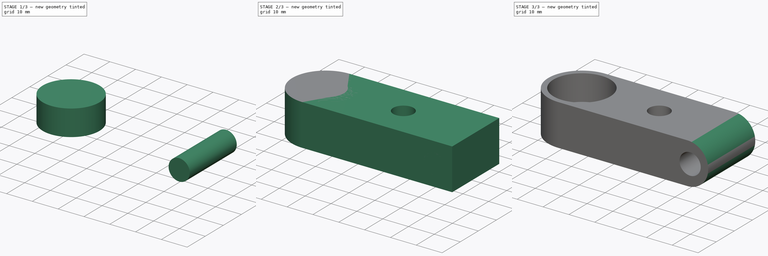
[diagram: build sequence overview — one tinted view per stage of 3, left to right]
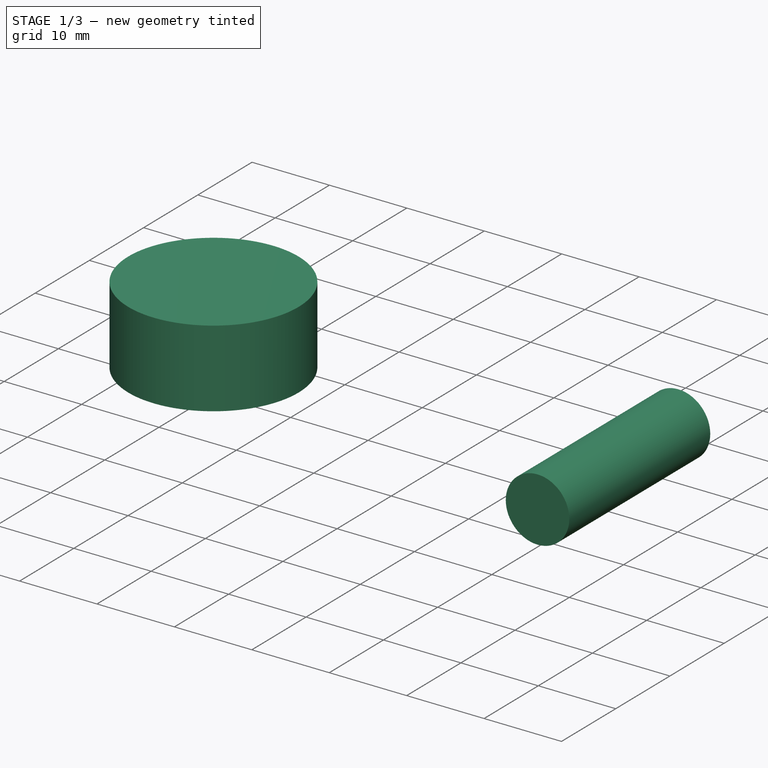
[diagram: stage 1 of 3 — iso view after this stage's code; geometry added in this stage tinted green]
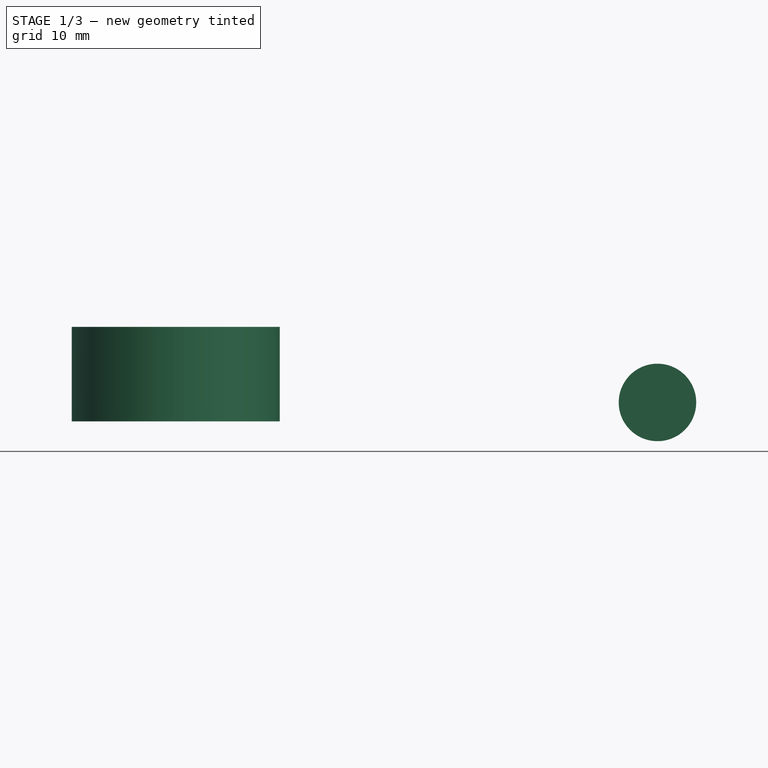
[diagram: stage 1 of 3 — front view after this stage's code; geometry added in this stage tinted green]
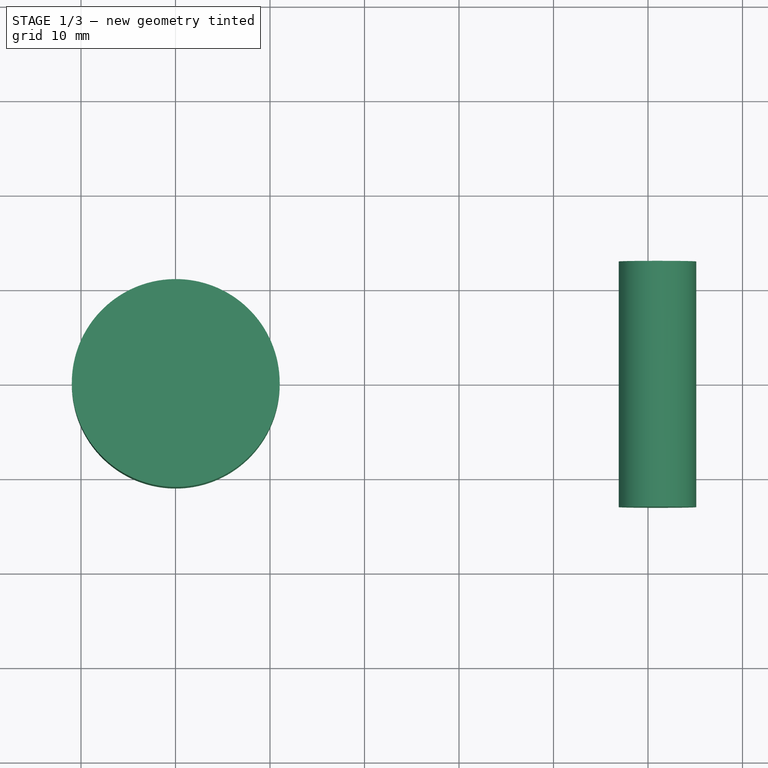
[diagram: stage 1 of 3 — top view after this stage's code; geometry added in this stage tinted green]
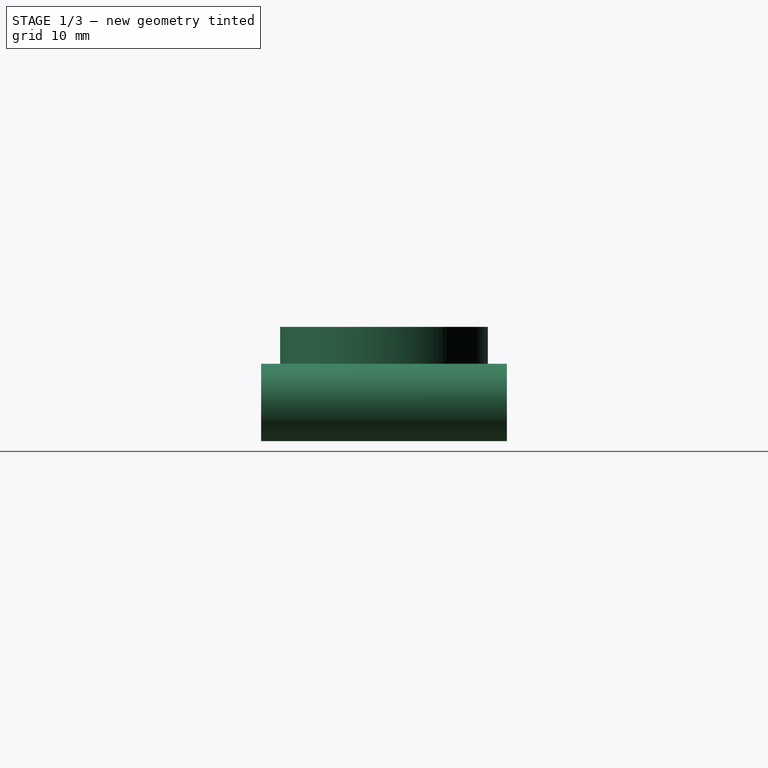
[diagram: stage 1 of 3 — right view after this stage's code; geometry added in this stage tinted green]
FCSTD DOCUMENT  (FreeCAD 0.16R6707 (Git))
Label: FrameRodMount
License: All rights reserved
LicenseURL: http://en.wikipedia.org/wiki/All_rights_reserved
objects: Sketcher::SketchObject×3, PartDesign::Pad×3, Part::MultiFuse×1, Part::Cut×1, PartDesign::Fillet×1
note: 12 computed .brp shape members not serialized (recipe doc carries the construction recipe); baked Part::Feature solids carry a one-line shape summary decoded from their .brp

FEATURE [Sketcher::SketchObject] Sketch001
  Placement = pos=(0,-13,0) rot=(1,0,0;1.5708rad)
  sketch-geometry (1):
    g0: Circle CenterX=21 CenterY=8 CenterZ=0 NormalX=0 NormalY=0 NormalZ=1 Radius=4.1
  constraints (3):
    c: DistanceX(g-1,g0) = 21
    c: Radius(g0) = 4.1
    c: DistanceY(g-1,g0) = 8
FEATURE [PartDesign::Pad] Pad001
  Length = 26
  Length2 = 100
  Placement = pos=(0,-13,0) rot=(1,0,0;1.5708rad)
  Reversed = true
  Sketch = -> Sketch001
  Type = 0
FEATURE [Sketcher::SketchObject] Sketch002
  Placement = pos=(0,0,16) rot=(0,0,1;0rad)
  sketch-geometry (1):
    g0: Circle CenterX=-29.9715 CenterY=0 CenterZ=0 NormalX=0 NormalY=0 NormalZ=1 Radius=11
  constraints (2):
    c: PointOnObject(g0,g-1)
    c: Radius(g0) = 11
FEATURE [PartDesign::Pad] Pad002
  Length = 10
  Length2 = 100
  Placement = pos=(0,0,16) rot=(0,0,1;0rad)
  Reversed = true
  Sketch = -> Sketch002
  Type = 0
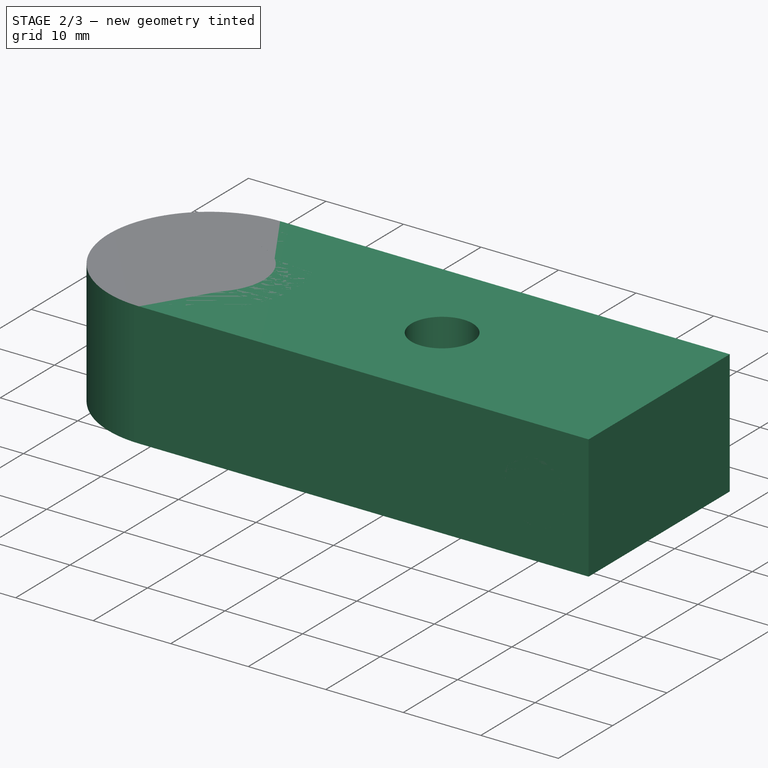
[diagram: stage 2 of 3 — iso view after this stage's code; geometry added in this stage tinted green]
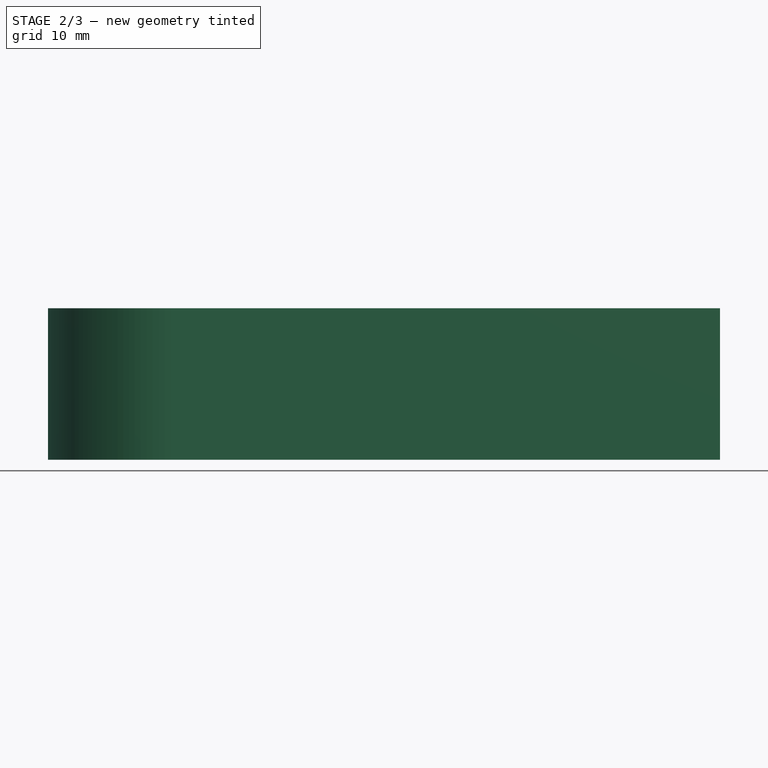
[diagram: stage 2 of 3 — front view after this stage's code; geometry added in this stage tinted green]
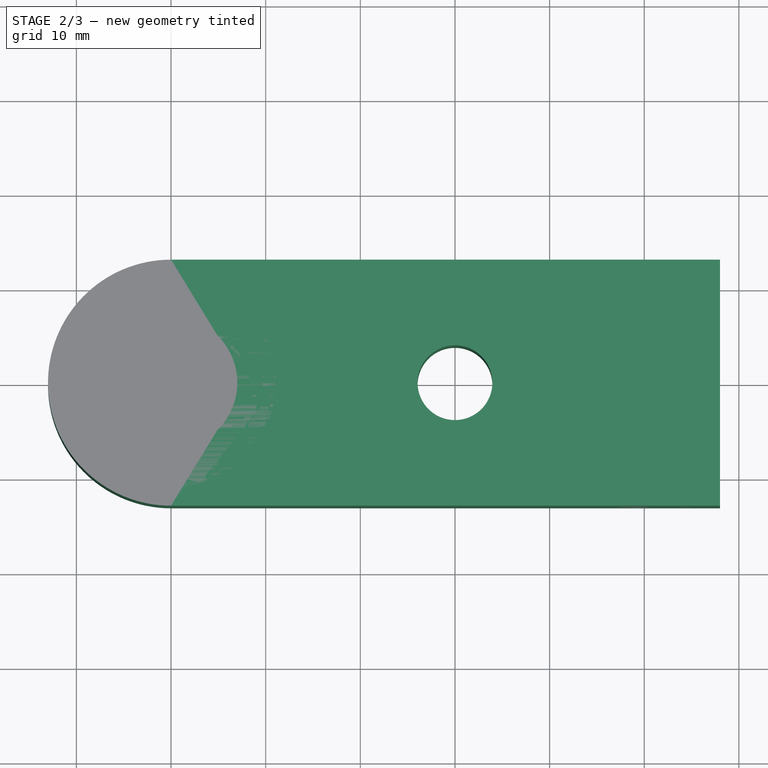
[diagram: stage 2 of 3 — top view after this stage's code; geometry added in this stage tinted green]
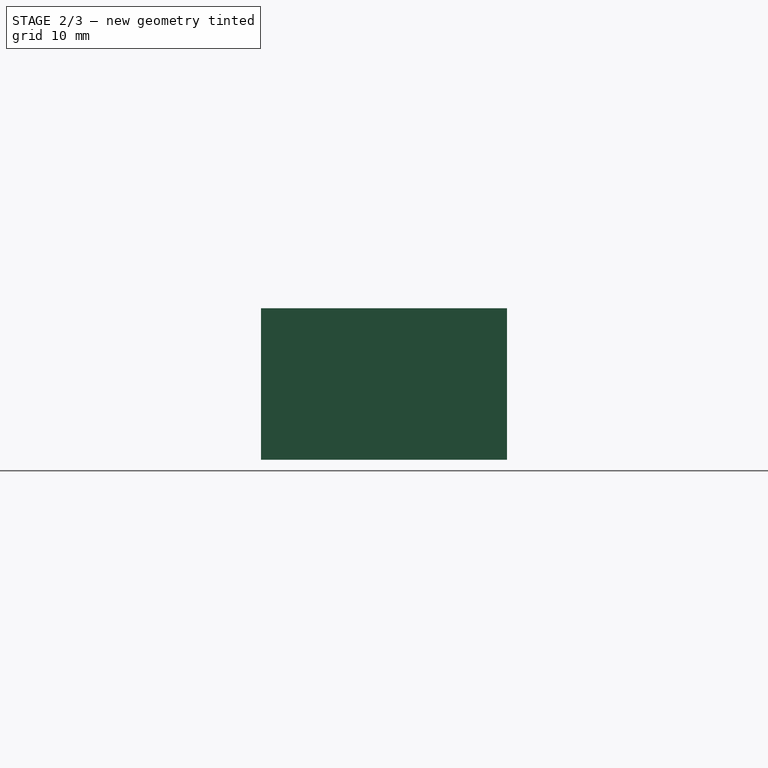
[diagram: stage 2 of 3 — right view after this stage's code; geometry added in this stage tinted green]
FEATURE [Sketcher::SketchObject] Sketch
  sketch-geometry (6):
    g0: ArcOfCircle CenterX=-30 CenterY=0 CenterZ=0 NormalX=0 NormalY=0 NormalZ=1 Radius=13 StartAngle=1.5708 EndAngle=4.71239
    g1: LineSegment StartX=-30 StartY=-13 StartZ=0 EndX=28 EndY=-13 EndZ=0
    g2: LineSegment StartX=-30 StartY=13 StartZ=0 EndX=28 EndY=13 EndZ=0
    g3: LineSegment StartX=28 StartY=13 StartZ=0 EndX=28 EndY=-13 EndZ=0
    g4: Circle CenterX=-30 CenterY=0 CenterZ=0 NormalX=0 NormalY=0 NormalZ=1 Radius=7
    g5: Circle CenterX=0 CenterY=0 CenterZ=0 NormalX=0 NormalY=0 NormalZ=1 Radius=3.95
  constraints (16):
    c: Tangent(g0,g2) = 1.5708
    c: Tangent(g0,g1) = -1.5708
    c: Horizontal(g1)
    c: Vertical(g3)
    c: Coincident(g3,g1)
    c: Coincident(g3,g2)
    c: Horizontal(g2)
    c: Equal(g1,g2)
    c: PointOnObject(g0,g-1)
    c: Coincident(g4,g0)
    c: Radius(g4) = 7
    c: Radius(g0) = 13
    c: Coincident(g5,g-1)
    c: Radius(g5) = 3.95
    c: DistanceX(g0,g-1) = 30
    c: DistanceX(g-1,g2) = 28
FEATURE [PartDesign::Pad] Pad  label="Base"
  Length = 16
  Length2 = 100
  Sketch = -> Sketch
  Type = 0
FEATURE [Part::MultiFuse] Fusion  label="CutBlock"
  Shapes = -> [Pad001,Pad002]
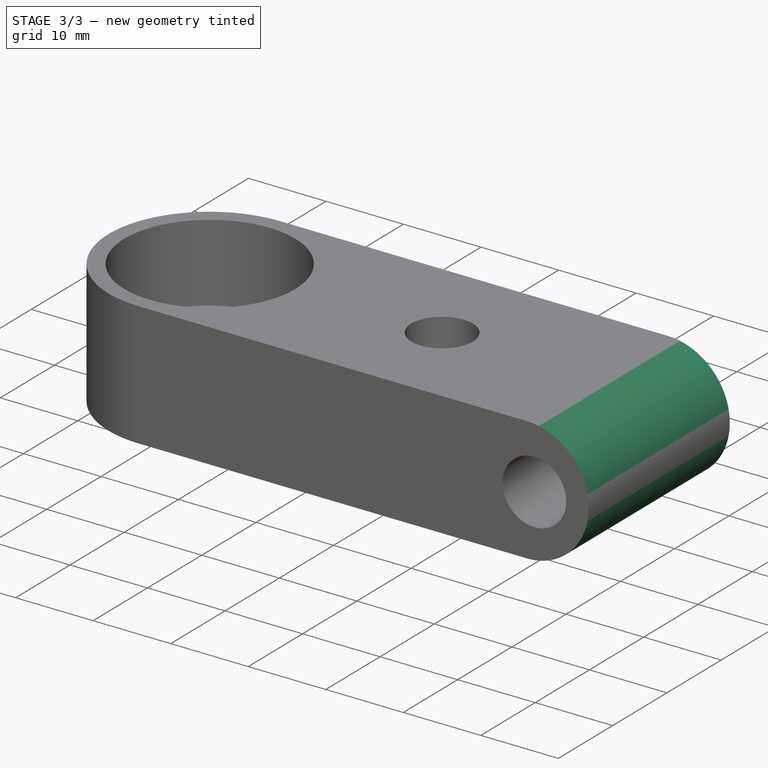
[diagram: stage 3 of 3 — iso view after this stage's code; geometry added in this stage tinted green]
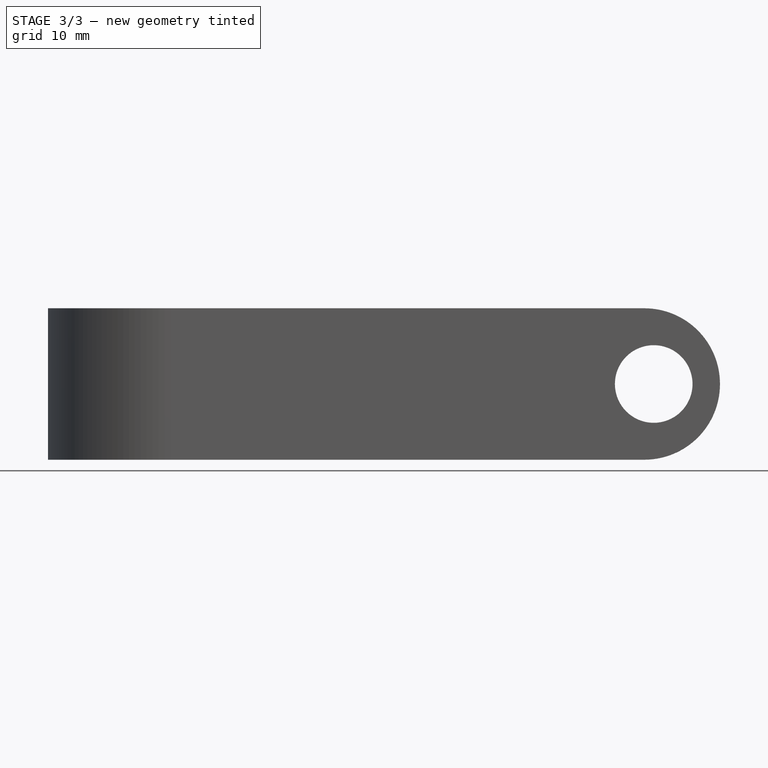
[diagram: stage 3 of 3 — front view after this stage's code; geometry added in this stage tinted green]
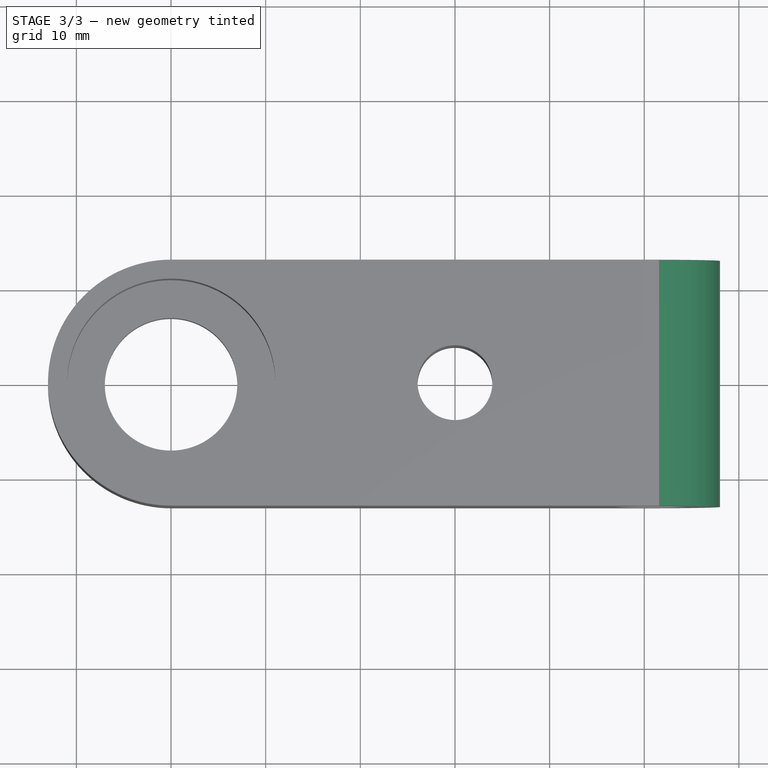
[diagram: stage 3 of 3 — top view after this stage's code; geometry added in this stage tinted green]
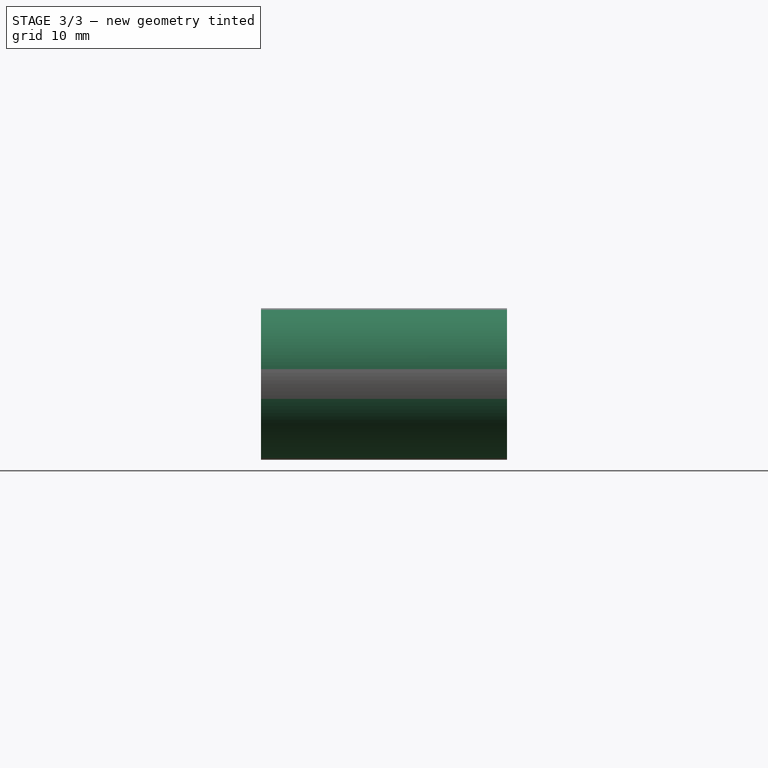
[diagram: stage 3 of 3 — right view after this stage's code; geometry added in this stage tinted green]
FEATURE [Part::Cut] Cut
  Base = -> Pad
  Tool = -> Fusion
FEATURE [PartDesign::Fillet] Fillet
  Base = -> Cut [Edge16,Edge13]
  Radius = 7.99
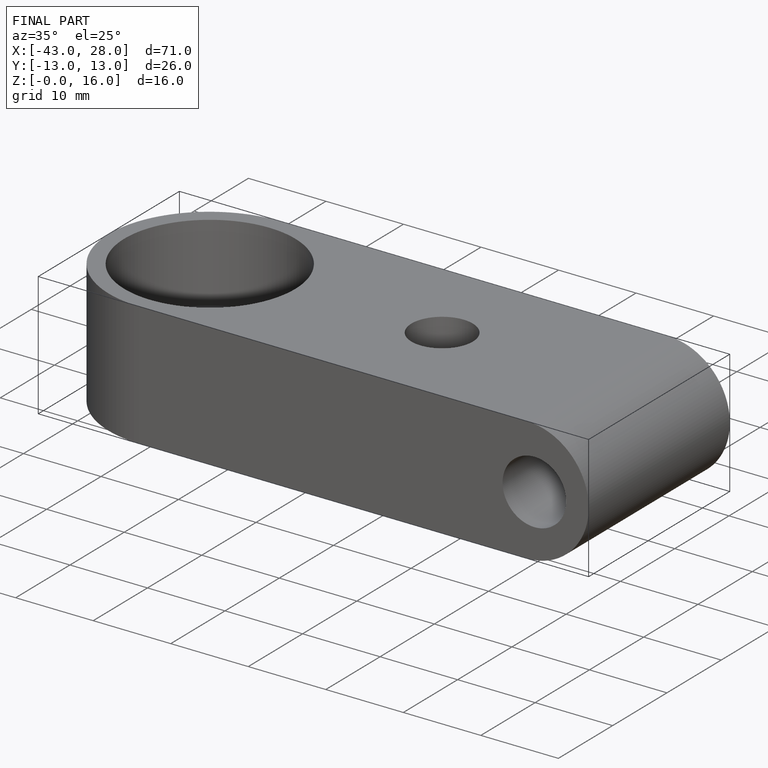
[diagram: finished part — iso view with bounding-box wireframe]
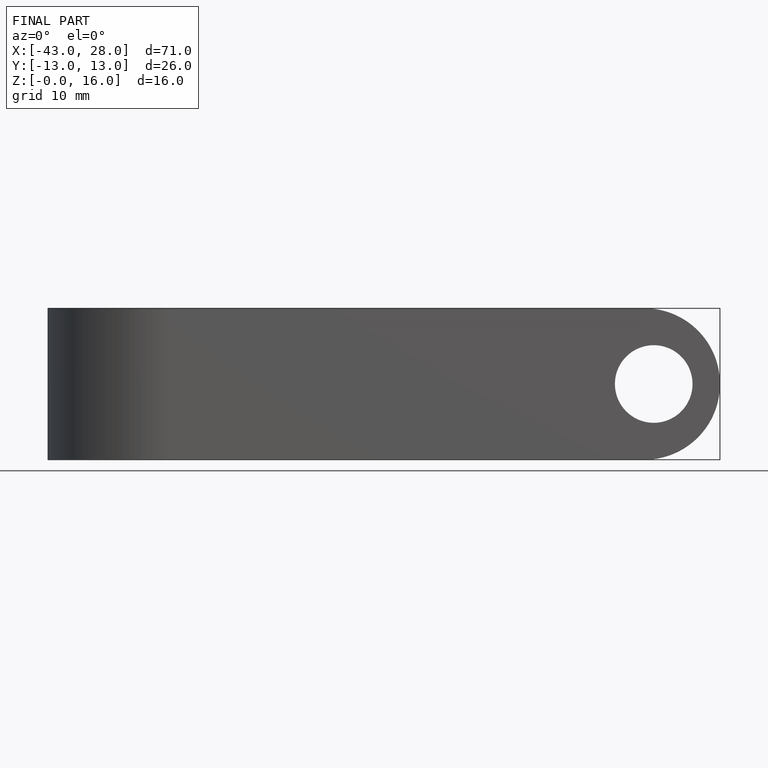
[diagram: finished part — front view with bounding-box wireframe]
